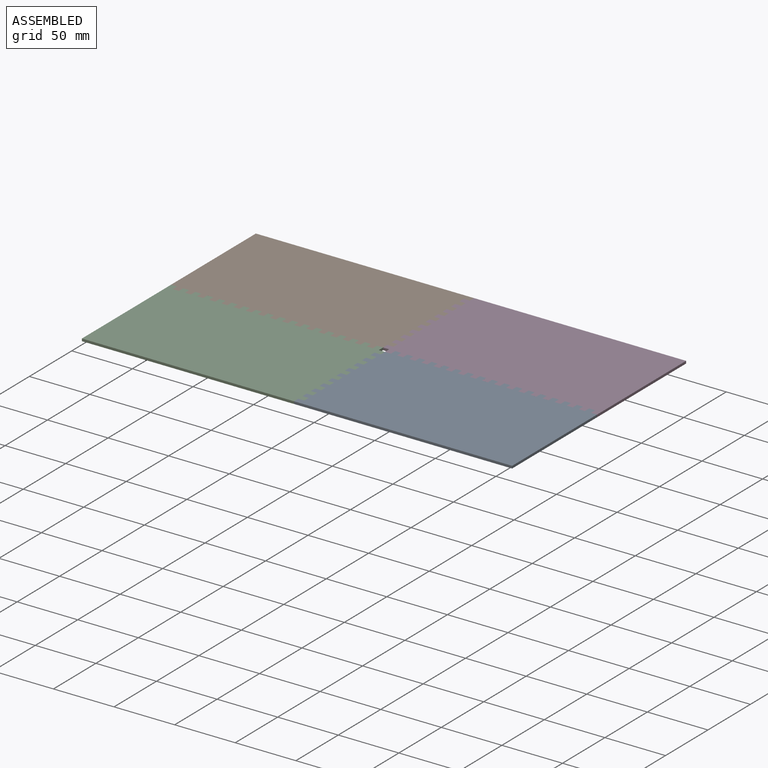
[diagram: assembled view]
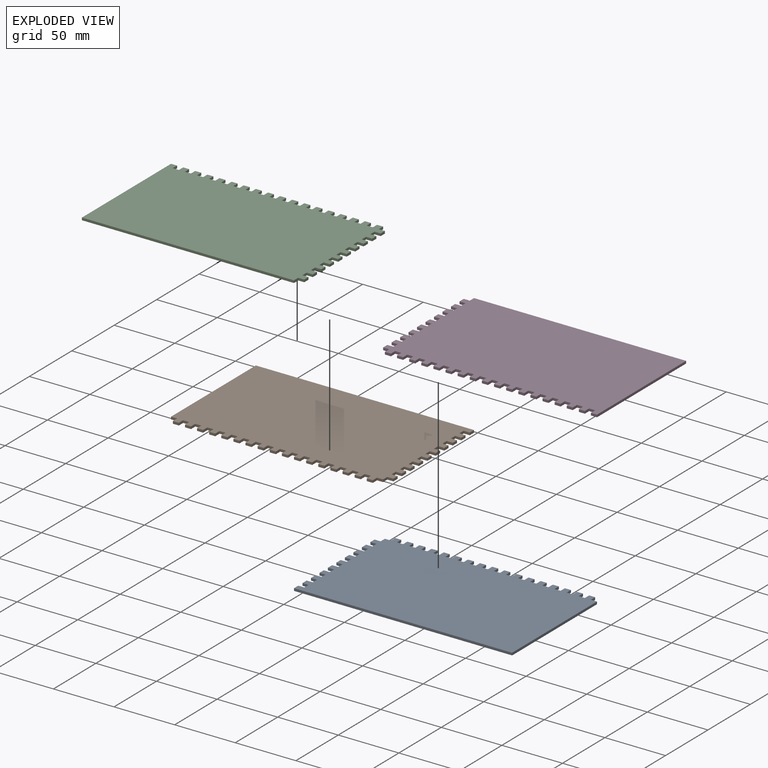
[diagram: exploded view]
GUIDED TOUR — MATED ASSEMBLY (Onshape document 534b0cb7e22ac7e6372c0f38, AutoMate assembly 534b0cb7e22ac7e6372c0f38_f17c7b90aa69325668de5390_e5fa5e17240f428e5be0f76f_default)

This assembly has 4 components, labeled P0..P3 below (a component is one placed occurrence of a part; the same part can appear more than once), held together by 3 mates. A mate is a constraint between two components; its type names the relative motion it leaves free:
  FASTENED — locks the two components together rigidly (no relative motion).
Axis/direction vectors are unit vectors and 'through' points are millimeter coordinates, both in the assembly's world frame.

MATES
  1. FASTENED "Fastened 1": P1 <-> P3, direction (0.000, 0.000, 1.000) through (5.84, 63.37, -3.83) mm
  2. FASTENED "Fastened 3": P0 <-> P2, direction (0.000, 0.000, 1.000) through (0.84, -136.63, -3.83) mm
  3. FASTENED "Fastened 2": P3 <-> P0, direction (0.000, 0.000, 1.000) through (178.34, -39.13, -3.83) mm

ASSEMBLY ORDER
  1. P3 — the base component [order verified]
  2. P1 [order verified]
  3. P2 [order verified]
  4. P0 [order verified]
Order-tag legend:
  [order verified] — this step's position reverses a verified removal order: the component was checked to insert without passing through the ones already placed.

Of the 4 components, 4 carry the full construction recipe — the FeatureScript program that regenerates the part's solid from scratch; the rest are supplied as boundary geometry only.
Each toured component is shown spotlighted twice — in the assembled view, then in the exploded view, where a leader line traces a displaced component back to its assembled socket (saturated green if recipe-attached, orange if geometry-only; every other component desaturated gray) — followed by its recipe or geometry summary and the mates that hold it.
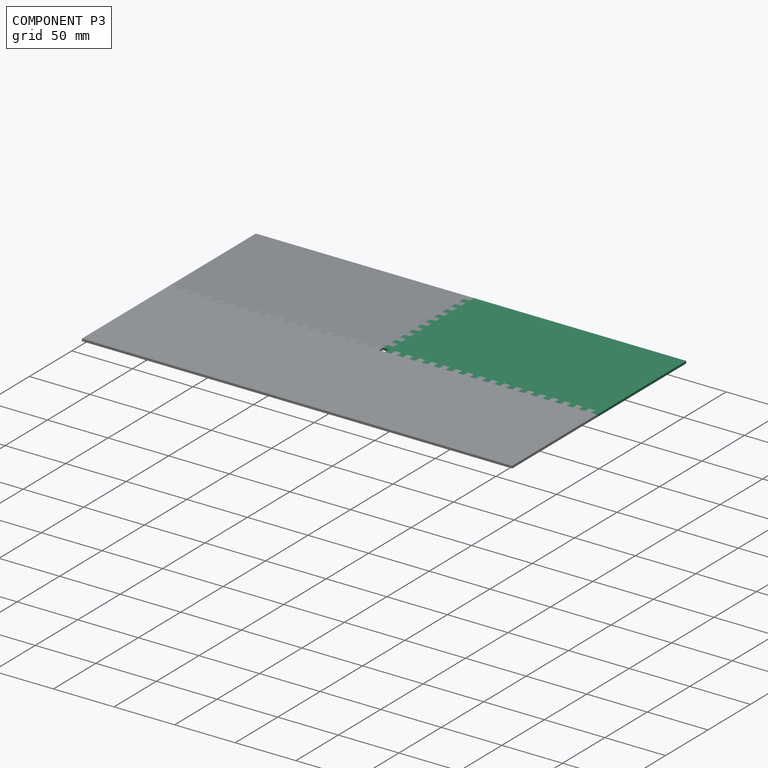
[diagram: component P3 — assembled]
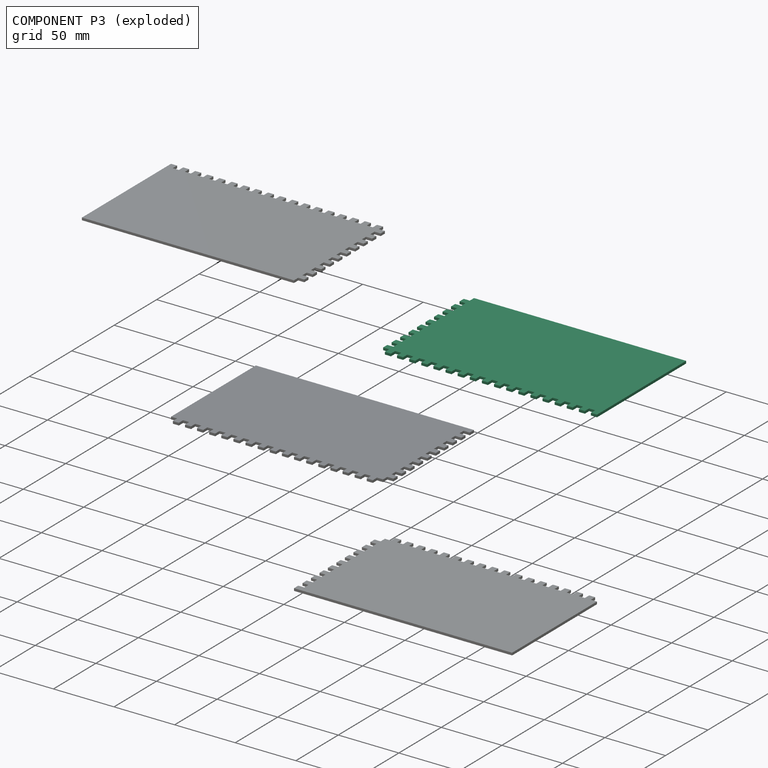
[diagram: component P3 — exploded]
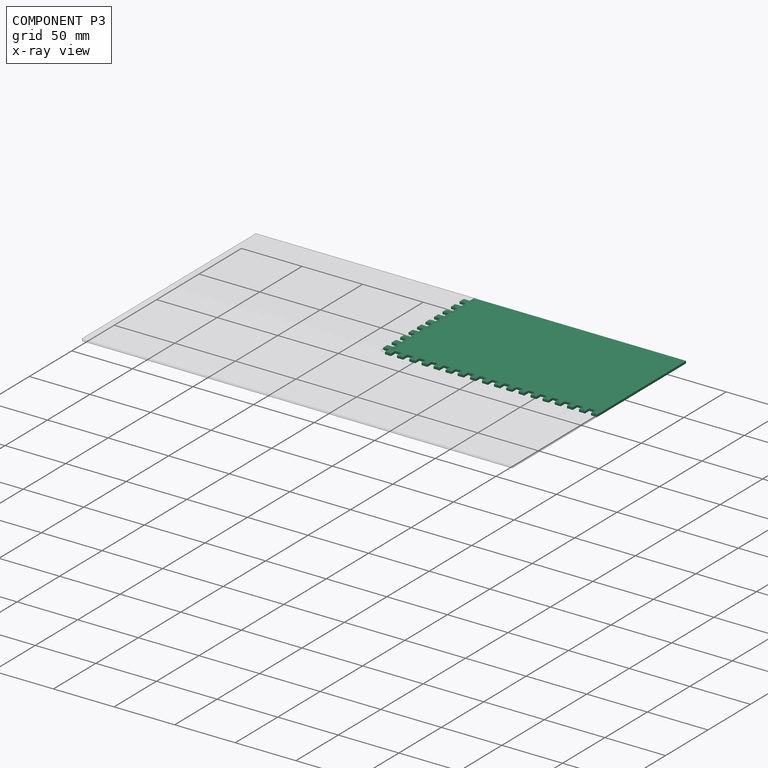
[diagram: component P3 — x-ray view]
COMPONENT P3 — same part as P2 (CADFS 00675525); its construction recipe is shown at P2.
Held by: FASTENED mate "Fastened 1" to P1; FASTENED mate "Fastened 2" to P0.
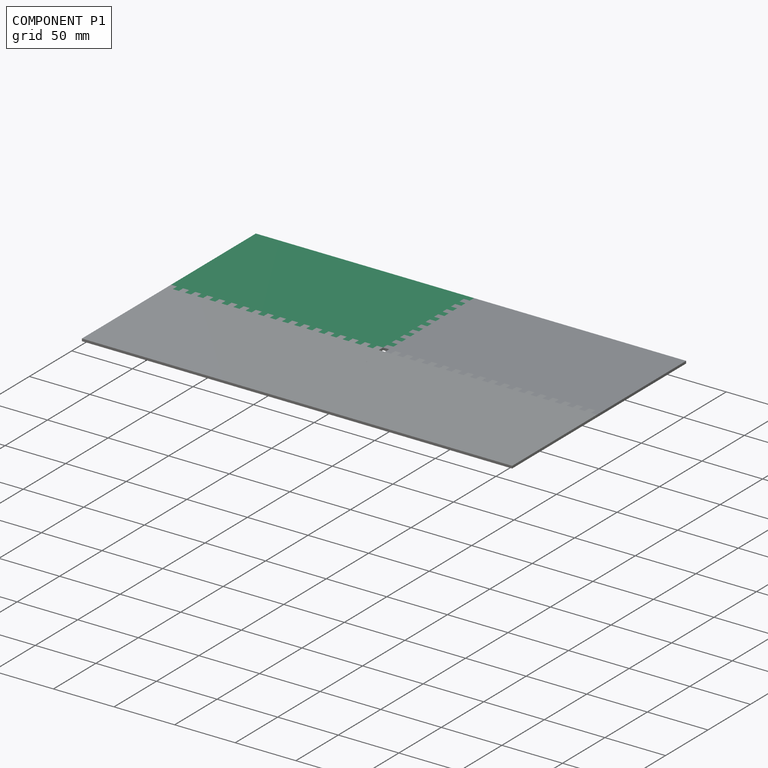
[diagram: component P1 — assembled]
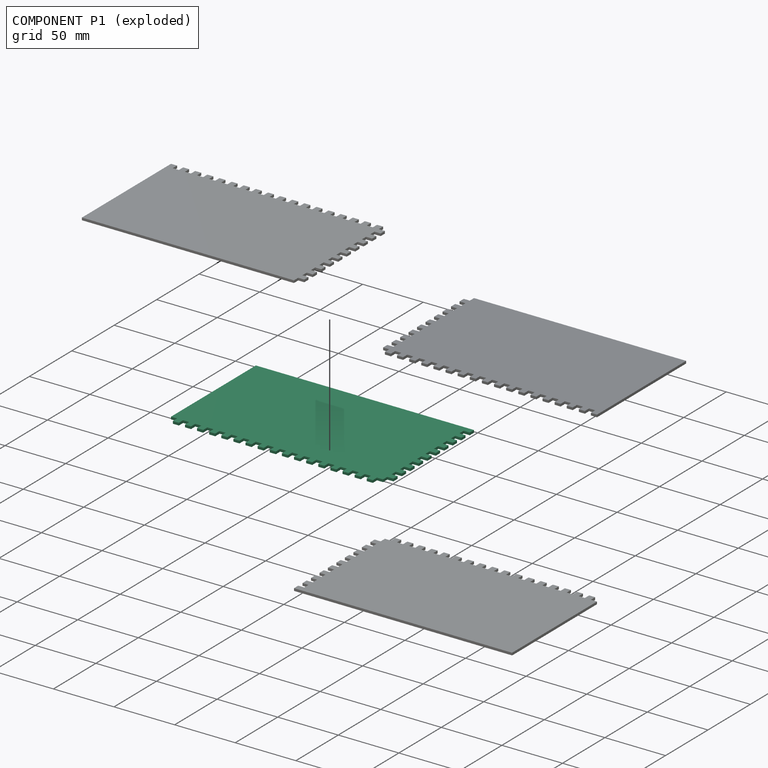
[diagram: component P1 — exploded]
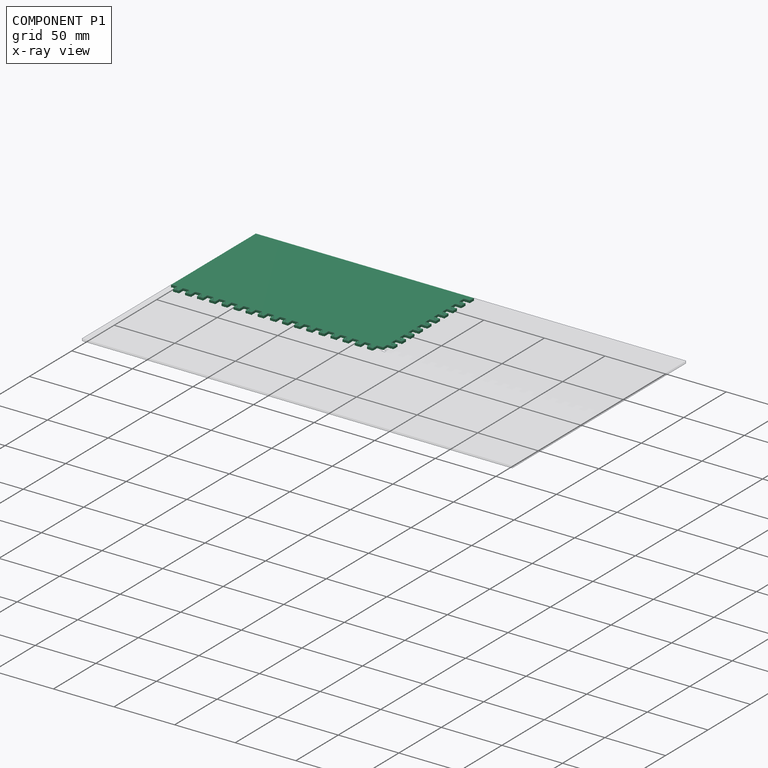
[diagram: component P1 — x-ray view]
COMPONENT P1 — same part as P0 (CADFS 00675526); its construction recipe is shown at P0.
Held by: FASTENED mate "Fastened 1" to P3.
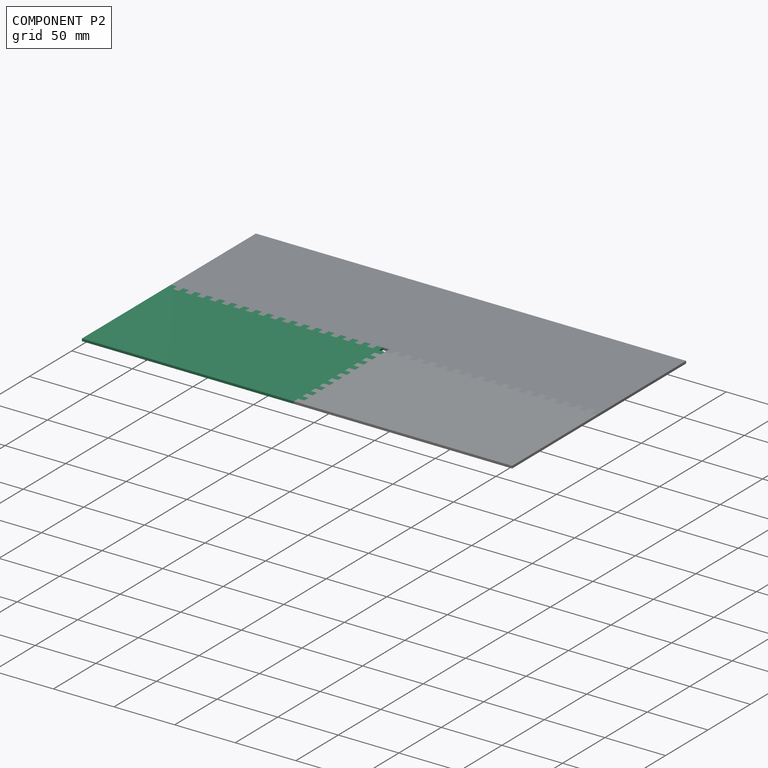
[diagram: component P2 — assembled]
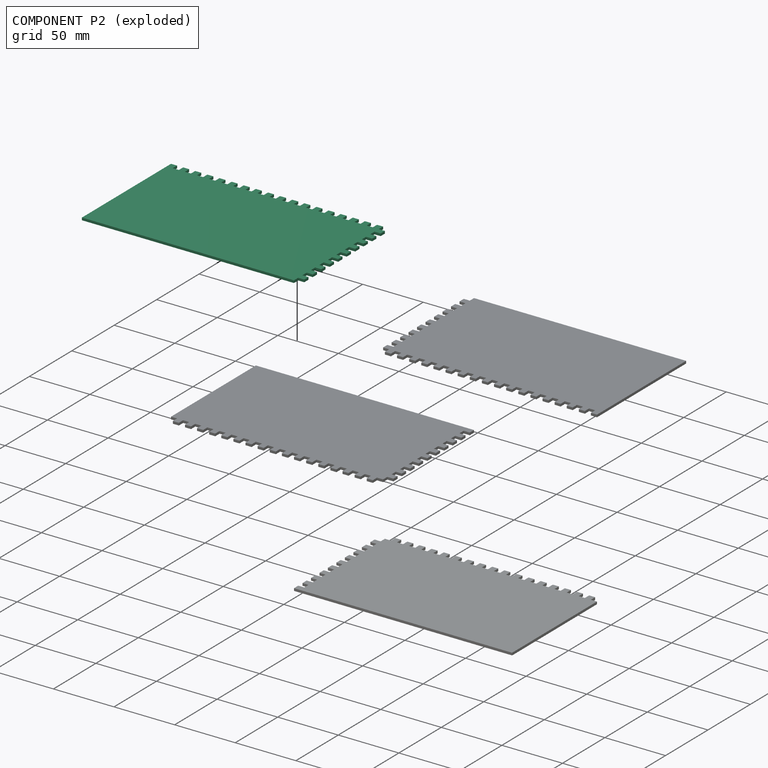
[diagram: component P2 — exploded]
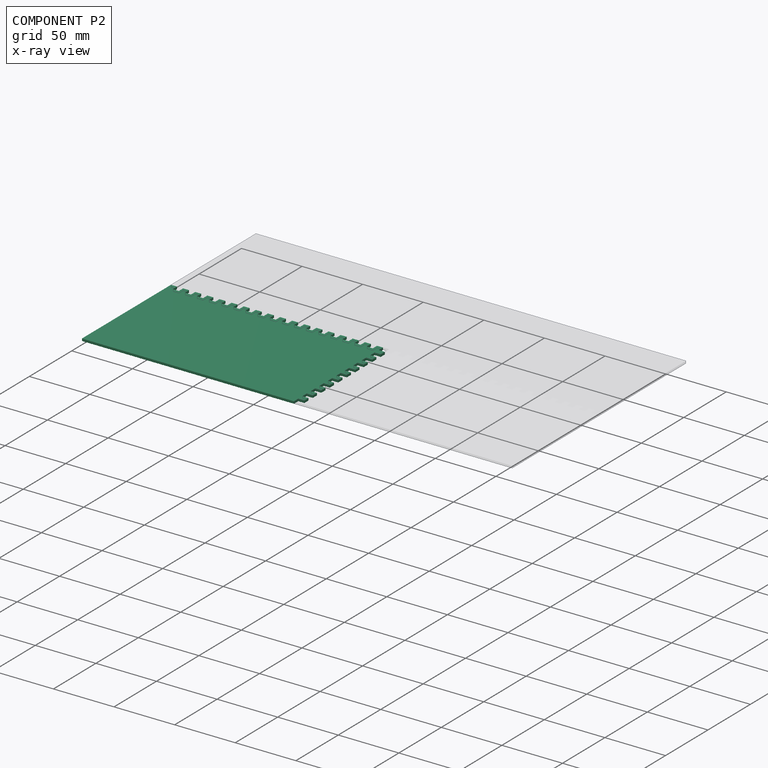
[diagram: component P2 — x-ray view]
COMPONENT P2 — recipe-attached (CADFS 00675525, mesh-verified: the recipe's output STEP matches this component's geometry to below the mesh-comparison resolution (tessellation chordal tolerance ~0.313 mm)).
Held by: FASTENED mate "Fastened 3" to P0.
Construction recipe (FeatureScript — the CAD program that rebuilds this solid; sketch coordinates are in the units given by the * unit suffixes, e.g. mm):

FeatureScript 1511;
import(path : "onshape/std/geometry.fs", version : "1511.0");
import(path : "onshape/std/common.fs", version : "1511.0");
const mm = millimeter;
const VERTEX = EntityType.VERTEX;
const EDGE = EntityType.EDGE;
const FACE = EntityType.FACE;
const BODY = EntityType.BODY;
function v(x, y){return vector(x, y);}
function OD(order){return orderDisambiguation(order);}
function OSD(set){return originalSetDisambiguation(set);}
function TD(topology){return topologyDisambiguation(topology);}
function TDD(query){return trueDependencyDisambiguation(query);}
function sQuery(a, b, c) {return sketchEntityQuery(a, b, c);}

annotation { "Feature Type Name" : "Feature", "Feature Type Description" : "" }
export const myFeature = defineFeature(function(context is Context, id is Id, definition is map)
    precondition{}
    {
        {
            var Q0;
            Q0=qCreatedBy(makeId("Top.planeOp"),FACE);
            var sketch = newSketch(context, id + "F0", { "sketchPlane" : qUnion([Q0])});
            skLineSegment(sketch, "E0", {"start": v(-180, -103.5) * mm, "end": v(-5, -103.5) * mm});
            skLineSegment(sketch, "E1", {"start": v(0, -3.5) * mm, "end": v(0, -8.5) * mm});
            skLineSegment(sketch, "E2", {"start": v(-180, 1.5) * mm, "end": v(-180, -3.5) * mm});
            skLineSegment(sketch, "E3", {"start": v(-180, 1.5) * mm, "end": v(-175, 1.5) * mm});
            skLineSegment(sketch, "E4", {"start": v(-170, 1.5) * mm, "end": v(-165, 1.5) * mm});
            skLineSegment(sketch, "E5", {"start": v(-160, 1.5) * mm, "end": v(-155, 1.5) * mm});
            skLineSegment(sketch, "E6", {"start": v(-150, 1.5) * mm, "end": v(-145, 1.5) * mm});
            skLineSegment(sketch, "E7", {"start": v(-140, 1.5) * mm, "end": v(-135, 1.5) * mm});
            skLineSegment(sketch, "E8", {"start": v(-130, 1.5) * mm, "end": v(-125, 1.5) * mm});
            skLineSegment(sketch, "E9", {"start": v(-120, 1.5) * mm, "end": v(-115, 1.5) * mm});
            skLineSegment(sketch, "E10", {"start": v(-110, 1.5) * mm, "end": v(-105, 1.5) * mm});
            skLineSegment(sketch, "E11", {"start": v(-100, 1.5) * mm, "end": v(-95, 1.5) * mm});
            skLineSegment(sketch, "E12", {"start": v(-90, 1.5) * mm, "end": v(-85, 1.5) * mm});
            skLineSegment(sketch, "E13", {"start": v(-80, 1.5) * mm, "end": v(-75, 1.5) * mm});
            skLineSegment(sketch, "E14", {"start": v(-70, 1.5) * mm, "end": v(-65, 1.5) * mm});
            skLineSegment(sketch, "E15", {"start": v(-60, 1.5) * mm, "end": v(-55, 1.5) * mm});
            skLineSegment(sketch, "E16", {"start": v(-50, 1.5) * mm, "end": v(-45, 1.5) * mm});
            skLineSegment(sketch, "E17", {"start": v(-40, 1.5) * mm, "end": v(-35, 1.5) * mm});
            skLineSegment(sketch, "E18", {"start": v(-30, 1.5) * mm, "end": v(-25, 1.5) * mm});
            skLineSegment(sketch, "E19", {"start": v(-20, 1.5) * mm, "end": v(-15, 1.5) * mm});
            skLineSegment(sketch, "E20", {"start": v(-10, 1.5) * mm, "end": v(-5, 1.5) * mm});
            skLineSegment(sketch, "E21", {"start": v(-180, -3.5) * mm, "end": v(-180, -103.5) * mm});
            skLineSegment(sketch, "E22", {"start": v(-175, -3.5) * mm, "end": v(-170, -3.5) * mm});
            skLineSegment(sketch, "E23", {"start": v(-175, 1.5) * mm, "end": v(-175, -3.5) * mm});
            skLineSegment(sketch, "E24", {"start": v(-170, 1.5) * mm, "end": v(-170, -3.5) * mm});
            skLineSegment(sketch, "E25", {"start": v(-165, 1.5) * mm, "end": v(-165, -3.5) * mm});
            skLineSegment(sketch, "E26", {"start": v(-160, 1.5) * mm, "end": v(-160, -3.5) * mm});
            skLineSegment(sketch, "E27", {"start": v(-155, 1.5) * mm, "end": v(-155, -3.5) * mm});
            skLineSegment(sketch, "E28", {"start": v(-150, 1.5) * mm, "end": v(-150, -3.5) * mm});
            skLineSegment(sketch, "E29", {"start": v(-145, 1.5) * mm, "end": v(-145, -3.5) * mm});
            skLineSegment(sketch, "E30", {"start": v(-140, 1.5) * mm, "end": v(-140, -3.5) * mm});
            skLineSegment(sketch, "E31", {"start": v(-135, 1.5) * mm, "end": v(-135, -3.5) * mm});
            skLineSegment(sketch, "E32", {"start": v(-130, 1.5) * mm, "end": v(-130, -3.5) * mm});
            skLineSegment(sketch, "E33", {"start": v(-125, 1.5) * mm, "end": v(-125, -3.5) * mm});
            skLineSegment(sketch, "E34", {"start": v(-85, 1.5) * mm, "end": v(-85, -3.5) * mm});
            skLineSegment(sketch, "E35", {"start": v(-80, 1.5) * mm, "end": v(-80, -3.5) * mm});
            skLineSegment(sketch, "E36", {"start": v(-75, 1.5) * mm, "end": v(-75, -3.5) * mm});
            skLineSegment(sketch, "E37", {"start": v(-70, 1.5) * mm, "end": v(-70, -3.5) * mm});
            skLineSegment(sketch, "E38", {"start": v(-65, 1.5) * mm, "end": v(-65, -3.5) * mm});
            skLineSegment(sketch, "E39", {"start": v(-60, 1.5) * mm, "end": v(-60, -3.5) * mm});
            skLineSegment(sketch, "E40", {"start": v(-55, 1.5) * mm, "end": v(-55, -3.5) * mm});
            skLineSegment(sketch, "E41", {"start": v(-50, 1.5) * mm, "end": v(-50, -3.5) * mm});
            skLineSegment(sketch, "E42", {"start": v(-45, 1.5) * mm, "end": v(-45, -3.5) * mm});
            skLineSegment(sketch, "E43", {"start": v(-40, 1.5) * mm, "end": v(-40, -3.5) * mm});
            skLineSegment(sketch, "E44", {"start": v(-35, 1.5) * mm, "end": v(-35, -3.5) * mm});
            skLineSegment(sketch, "E45", {"start": v(-30, 1.5) * mm, "end": v(-30, -3.5) * mm});
            skLineSegment(sketch, "E46", {"start": v(-25, 1.5) * mm, "end": v(-25, -3.5) * mm});
            skLineSegment(sketch, "E47", {"start": v(-20, 1.5) * mm, "end": v(-20, -3.5) * mm});
            skLineSegment(sketch, "E48", {"start": v(-15, 1.5) * mm, "end": v(-15, -3.5) * mm});
            skLineSegment(sketch, "E49", {"start": v(-10, 1.5) * mm, "end": v(-10, -3.5) * mm});
            skLineSegment(sketch, "E50", {"start": v(-5, 1.5) * mm, "end": v(-5, -3.5) * mm});
            skLineSegment(sketch, "E51.MirrorCS", {"start": v(-180, 1.5) * mm, "end": v(-175, 1.5) * mm, "construction": true});
            skLineSegment(sketch, "E52.trimOffspring", {"start": v(-165, -3.5) * mm, "end": v(-160, -3.5) * mm});
            skLineSegment(sketch, "E53.trimOffspring", {"start": v(-155, -3.5) * mm, "end": v(-150, -3.5) * mm});
            skLineSegment(sketch, "E54.trimOffspring", {"start": v(-145, -3.5) * mm, "end": v(-140, -3.5) * mm});
            skLineSegment(sketch, "E55.trimOffspring", {"start": v(-135, -3.5) * mm, "end": v(-130, -3.5) * mm});
            skLineSegment(sketch, "E56.trimOffspring", {"start": v(-125, -3.5) * mm, "end": v(-120, -3.5) * mm});
            skLineSegment(sketch, "E57.trimOffspring", {"start": v(-115, -3.5) * mm, "end": v(-110, -3.5) * mm});
            skLineSegment(sketch, "E58.trimOffspring", {"start": v(-105, -3.5) * mm, "end": v(-100, -3.5) * mm});
            skLineSegment(sketch, "E59.trimOffspring", {"start": v(-95, -3.5) * mm, "end": v(-90, -3.5) * mm});
            skLineSegment(sketch, "E60.trimOffspring", {"start": v(-85, -3.5) * mm, "end": v(-80, -3.5) * mm});
            skLineSegment(sketch, "E61.trimOffspring", {"start": v(-75, -3.5) * mm, "end": v(-70, -3.5) * mm});
            skLineSegment(sketch, "E62.trimOffspring", {"start": v(-65, -3.5) * mm, "end": v(-60, -3.5) * mm});
            skLineSegment(sketch, "E63.trimOffspring", {"start": v(-55, -3.5) * mm, "end": v(-50, -3.5) * mm});
            skLineSegment(sketch, "E64.trimOffspring", {"start": v(-45, -3.5) * mm, "end": v(-40, -3.5) * mm});
            skLineSegment(sketch, "E65.trimOffspring", {"start": v(-25, -3.5) * mm, "end": v(-20, -3.5) * mm});
            skLineSegment(sketch, "E66.trimOffspring", {"start": v(-5, -3.5) * mm, "end": v(0, -3.5) * mm});
            skLineSegment(sketch, "E67.trimOffspring", {"start": v(-15, -3.5) * mm, "end": v(-10, -3.5) * mm});
            skLineSegment(sketch, "E68", {"start": v(-30, -3.5) * mm, "end": v(-35, -3.5) * mm});
            skLineSegment(sketch, "E69", {"start": v(-5, -3.5) * mm, "end": v(-5, -103.5) * mm});
            skLineSegment(sketch, "E70", {"start": v(-5, -8.5) * mm, "end": v(0, -8.5) * mm});
            skLineSegment(sketch, "E71", {"start": v(-5, -13.5) * mm, "end": v(0, -13.5) * mm});
            skLineSegment(sketch, "E72", {"start": v(-5, -18.5) * mm, "end": v(0, -18.5) * mm});
            skLineSegment(sketch, "E73", {"start": v(0, -23.5) * mm, "end": v(-5, -23.5) * mm});
            skLineSegment(sketch, "E74", {"start": v(-5, -28.5) * mm, "end": v(0, -28.5) * mm});
            skLineSegment(sketch, "E75", {"start": v(-5, -33.5) * mm, "end": v(0, -33.5) * mm});
            skLineSegment(sketch, "E76", {"start": v(0, -38.5) * mm, "end": v(-5, -38.5) * mm});
            skLineSegment(sketch, "E77", {"start": v(-5, -43.5) * mm, "end": v(0, -43.5) * mm});
            skLineSegment(sketch, "E78", {"start": v(0, -48.5) * mm, "end": v(-5, -48.5) * mm});
            skLineSegment(sketch, "E79", {"start": v(-5, -53.5) * mm, "end": v(0, -53.5) * mm});
            skLineSegment(sketch, "E80", {"start": v(0, -58.5) * mm, "end": v(-5, -58.5) * mm});
            skLineSegment(sketch, "E81", {"start": v(-5, -63.5) * mm, "end": v(0, -63.5) * mm});
            skLineSegment(sketch, "E82", {"start": v(-5, -68.5) * mm, "end": v(0, -68.5) * mm});
            skLineSegment(sketch, "E83", {"start": v(-5, -73.5) * mm, "end": v(0, -73.5) * mm});
            skLineSegment(sketch, "E84", {"start": v(-5, -78.5) * mm, "end": v(0, -78.5) * mm});
            skLineSegment(sketch, "E85", {"start": v(-5, -83.5) * mm, "end": v(0, -83.5) * mm});
            skLineSegment(sketch, "E86", {"start": v(-5, -88.5) * mm, "end": v(0, -88.5) * mm});
            skLineSegment(sketch, "E87", {"start": v(-5, -93.5) * mm, "end": v(0, -93.5) * mm});
            skLineSegment(sketch, "E88", {"start": v(-5, -98.5) * mm, "end": v(0, -98.5) * mm});
            skLineSegment(sketch, "E89.trimOffspring", {"start": v(0, -13.5) * mm, "end": v(0, -18.5) * mm});
            skLineSegment(sketch, "E90.trimOffspring", {"start": v(0, -23.5) * mm, "end": v(0, -28.5) * mm});
            skLineSegment(sketch, "E91.trimOffspring", {"start": v(0, -33.5) * mm, "end": v(0, -38.5) * mm});
            skLineSegment(sketch, "E92.trimOffspring", {"start": v(0, -43.5) * mm, "end": v(0, -48.5) * mm});
            skLineSegment(sketch, "E93.trimOffspring", {"start": v(0, -53.5) * mm, "end": v(0, -58.5) * mm});
            skLineSegment(sketch, "E94.trimOffspring", {"start": v(0, -63.5) * mm, "end": v(0, -68.5) * mm});
            skLineSegment(sketch, "E95.trimOffspring", {"start": v(0, -83.5) * mm, "end": v(0, -88.5) * mm});
            skLineSegment(sketch, "E96", {"start": v(-120, -3.5) * mm, "end": v(-120, 1.5) * mm});
            skLineSegment(sketch, "E97", {"start": v(-115, 1.5) * mm, "end": v(-115, -3.5) * mm});
            skLineSegment(sketch, "E98", {"start": v(-110, -3.5) * mm, "end": v(-110, 1.5) * mm});
            skLineSegment(sketch, "E99", {"start": v(-105, 1.5) * mm, "end": v(-105, -3.5) * mm});
            skLineSegment(sketch, "E100", {"start": v(-100, 1.5) * mm, "end": v(-100, -3.5) * mm});
            skLineSegment(sketch, "E101", {"start": v(-95, 1.5) * mm, "end": v(-95, -3.5) * mm});
            skLineSegment(sketch, "E102", {"start": v(-90, 1.5) * mm, "end": v(-90, -3.5) * mm});
            skLineSegment(sketch, "E103", {"start": v(0, -78.5) * mm, "end": v(0, -73.5) * mm});
            skLineSegment(sketch, "E104.trimOffspring", {"start": v(0, -93.5) * mm, "end": v(0, -98.5) * mm});
            skSolve(sketch);
        }
        {
            var Q0;
            Q0 = qSketchRegion(id + "F0", true);
            extrude(context, id + "F1", {"entities" : qUnion([Q0]), "depth" : 2 * mm, "offsetDistance" : 25 * mm});
        }
    });
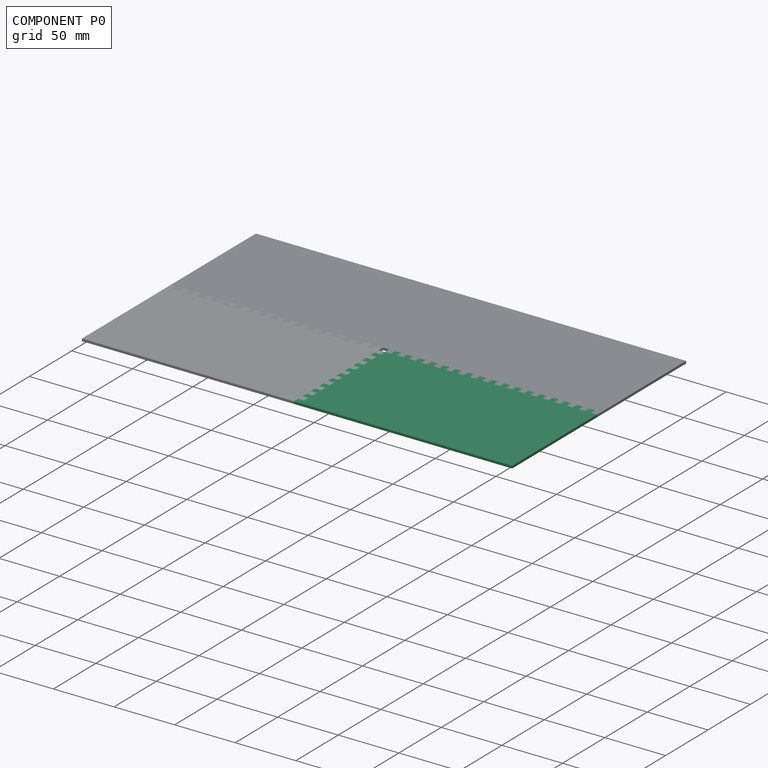
[diagram: component P0 — assembled]
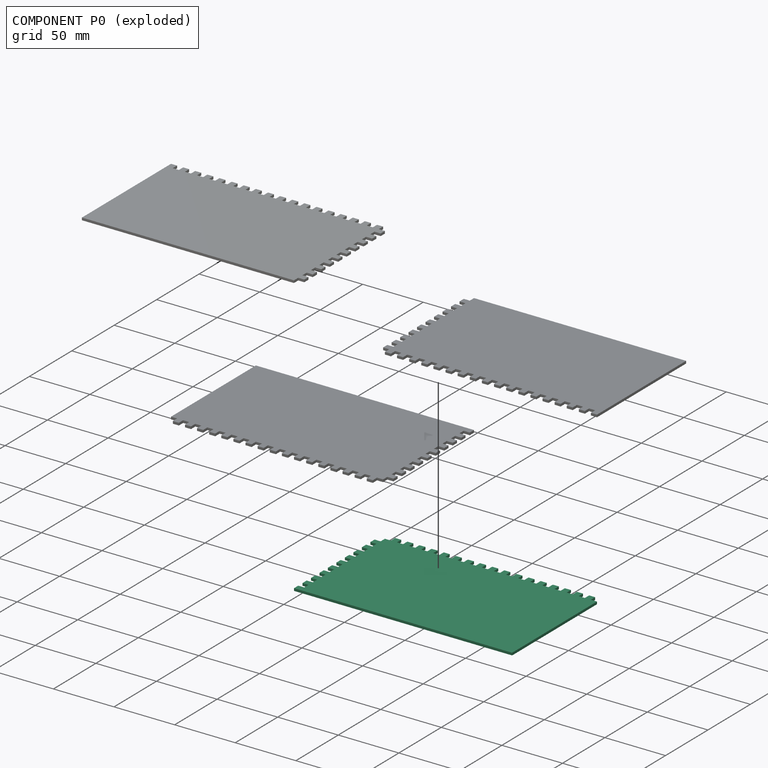
[diagram: component P0 — exploded]
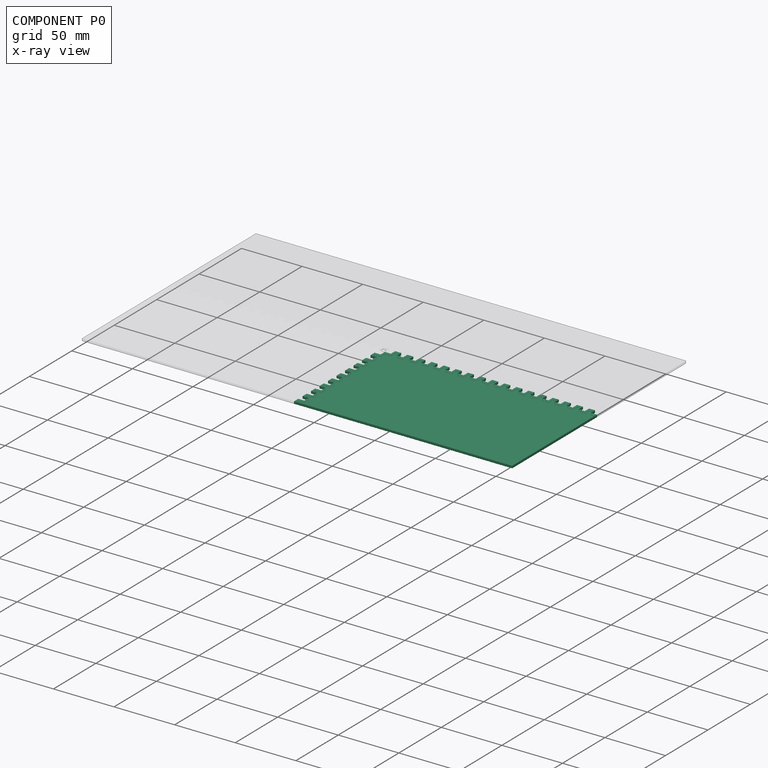
[diagram: component P0 — x-ray view]
COMPONENT P0 — recipe-attached (CADFS 00675526, mesh-verified: the recipe's output STEP matches this component's geometry to below the mesh-comparison resolution (tessellation chordal tolerance ~0.313 mm)).
Held by: FASTENED mate "Fastened 3" to P2; FASTENED mate "Fastened 2" to P3.
Construction recipe (FeatureScript — the CAD program that rebuilds this solid; sketch coordinates are in the units given by the * unit suffixes, e.g. mm):

FeatureScript 1511;
import(path : "onshape/std/geometry.fs", version : "1511.0");
import(path : "onshape/std/common.fs", version : "1511.0");
const mm = millimeter;
const VERTEX = EntityType.VERTEX;
const EDGE = EntityType.EDGE;
const FACE = EntityType.FACE;
const BODY = EntityType.BODY;
function v(x, y){return vector(x, y);}
function OD(order){return orderDisambiguation(order);}
function OSD(set){return originalSetDisambiguation(set);}
function TD(topology){return topologyDisambiguation(topology);}
function TDD(query){return trueDependencyDisambiguation(query);}
function sQuery(a, b, c) {return sketchEntityQuery(a, b, c);}

annotation { "Feature Type Name" : "Feature", "Feature Type Description" : "" }
export const myFeature = defineFeature(function(context is Context, id is Id, definition is map)
    precondition{}
    {
        {
            var Q0;
            Q0=qCreatedBy(makeId("Top.planeOp"),FACE);
            var sketch = newSketch(context, id + "F0", { "sketchPlane" : qUnion([Q0])});
            skLineSegment(sketch, "E0", {"start": v(-180, -103.5) * mm, "end": v(-5, -103.5) * mm});
            skLineSegment(sketch, "E1", {"start": v(-180, -3.5) * mm, "end": v(-180, -103.5) * mm});
            skLineSegment(sketch, "E2", {"start": v(-175, 1.5) * mm, "end": v(-175, -3.5) * mm});
            skLineSegment(sketch, "E3", {"start": v(-170, 1.5) * mm, "end": v(-170, -3.5) * mm});
            skLineSegment(sketch, "E4", {"start": v(-165, 1.5) * mm, "end": v(-165, -3.5) * mm});
            skLineSegment(sketch, "E5", {"start": v(-160, 1.5) * mm, "end": v(-160, -3.5) * mm});
            skLineSegment(sketch, "E6", {"start": v(-155, 1.5) * mm, "end": v(-155, -3.5) * mm});
            skLineSegment(sketch, "E7", {"start": v(-150, 1.5) * mm, "end": v(-150, -3.5) * mm});
            skLineSegment(sketch, "E8", {"start": v(-145, 1.5) * mm, "end": v(-145, -3.5) * mm});
            skLineSegment(sketch, "E9", {"start": v(-140, 1.5) * mm, "end": v(-140, -3.5) * mm});
            skLineSegment(sketch, "E10", {"start": v(-135, 1.5) * mm, "end": v(-135, -3.5) * mm});
            skLineSegment(sketch, "E11", {"start": v(-130, 1.5) * mm, "end": v(-130, -3.5) * mm});
            skLineSegment(sketch, "E12", {"start": v(-125, 1.5) * mm, "end": v(-125, -3.5) * mm});
            skLineSegment(sketch, "E13", {"start": v(-85, 1.5) * mm, "end": v(-85, -3.5) * mm});
            skLineSegment(sketch, "E14", {"start": v(-80, 1.5) * mm, "end": v(-80, -3.5) * mm});
            skLineSegment(sketch, "E15", {"start": v(-75, 1.5) * mm, "end": v(-75, -3.5) * mm});
            skLineSegment(sketch, "E16", {"start": v(-70, 1.5) * mm, "end": v(-70, -3.5) * mm});
            skLineSegment(sketch, "E17", {"start": v(-65, 1.5) * mm, "end": v(-65, -3.5) * mm});
            skLineSegment(sketch, "E18", {"start": v(-60, 1.5) * mm, "end": v(-60, -3.5) * mm});
            skLineSegment(sketch, "E19", {"start": v(-55, 1.5) * mm, "end": v(-55, -3.5) * mm});
            skLineSegment(sketch, "E20", {"start": v(-50, 1.5) * mm, "end": v(-50, -3.5) * mm});
            skLineSegment(sketch, "E21", {"start": v(-45, 1.5) * mm, "end": v(-45, -3.5) * mm});
            skLineSegment(sketch, "E22", {"start": v(-40, 1.5) * mm, "end": v(-40, -3.5) * mm});
            skLineSegment(sketch, "E23", {"start": v(-35, 1.5) * mm, "end": v(-35, -3.5) * mm});
            skLineSegment(sketch, "E24", {"start": v(-30, 1.5) * mm, "end": v(-30, -3.5) * mm});
            skLineSegment(sketch, "E25", {"start": v(-25, 1.5) * mm, "end": v(-25, -3.5) * mm});
            skLineSegment(sketch, "E26", {"start": v(-20, 1.5) * mm, "end": v(-20, -3.5) * mm});
            skLineSegment(sketch, "E27", {"start": v(-15, 1.5) * mm, "end": v(-15, -3.5) * mm});
            skLineSegment(sketch, "E28", {"start": v(-10, 1.5) * mm, "end": v(-10, -3.5) * mm});
            skLineSegment(sketch, "E29", {"start": v(-5, -3.5) * mm, "end": v(-5, -8.5) * mm});
            skLineSegment(sketch, "E30", {"start": v(-5, -8.5) * mm, "end": v(0, -8.5) * mm});
            skLineSegment(sketch, "E31", {"start": v(-5, -13.5) * mm, "end": v(0, -13.5) * mm});
            skLineSegment(sketch, "E32", {"start": v(-5, -18.5) * mm, "end": v(0, -18.5) * mm});
            skLineSegment(sketch, "E33", {"start": v(0, -23.5) * mm, "end": v(-5, -23.5) * mm});
            skLineSegment(sketch, "E34", {"start": v(-5, -28.5) * mm, "end": v(0, -28.5) * mm});
            skLineSegment(sketch, "E35", {"start": v(-5, -33.5) * mm, "end": v(0, -33.5) * mm});
            skLineSegment(sketch, "E36", {"start": v(0, -38.5) * mm, "end": v(-5, -38.5) * mm});
            skLineSegment(sketch, "E37", {"start": v(-5, -43.5) * mm, "end": v(0, -43.5) * mm});
            skLineSegment(sketch, "E38", {"start": v(0, -48.5) * mm, "end": v(-5, -48.5) * mm});
            skLineSegment(sketch, "E39", {"start": v(-5, -53.5) * mm, "end": v(0, -53.5) * mm});
            skLineSegment(sketch, "E40", {"start": v(0, -58.5) * mm, "end": v(-5, -58.5) * mm});
            skLineSegment(sketch, "E41", {"start": v(-5, -63.5) * mm, "end": v(0, -63.5) * mm});
            skLineSegment(sketch, "E42", {"start": v(-5, -68.5) * mm, "end": v(0, -68.5) * mm});
            skLineSegment(sketch, "E43", {"start": v(-5, -73.5) * mm, "end": v(0, -73.5) * mm});
            skLineSegment(sketch, "E44", {"start": v(-5, -78.5) * mm, "end": v(0, -78.5) * mm});
            skLineSegment(sketch, "E45", {"start": v(-5, -83.5) * mm, "end": v(0, -83.5) * mm});
            skLineSegment(sketch, "E46", {"start": v(-5, -88.5) * mm, "end": v(0, -88.5) * mm});
            skLineSegment(sketch, "E47", {"start": v(-5, -93.5) * mm, "end": v(0, -93.5) * mm});
            skLineSegment(sketch, "E48", {"start": v(-5, -98.5) * mm, "end": v(0, -98.5) * mm});
            skLineSegment(sketch, "E49", {"start": v(-120, -3.5) * mm, "end": v(-120, 1.5) * mm});
            skLineSegment(sketch, "E50", {"start": v(-115, 1.5) * mm, "end": v(-115, -3.5) * mm});
            skLineSegment(sketch, "E51", {"start": v(-110, -3.5) * mm, "end": v(-110, 1.5) * mm});
            skLineSegment(sketch, "E52", {"start": v(-105, 1.5) * mm, "end": v(-105, -3.5) * mm});
            skLineSegment(sketch, "E53", {"start": v(-100, 1.5) * mm, "end": v(-100, -3.5) * mm});
            skLineSegment(sketch, "E54", {"start": v(-95, 1.5) * mm, "end": v(-95, -3.5) * mm});
            skLineSegment(sketch, "E55", {"start": v(-90, 1.5) * mm, "end": v(-90, -3.5) * mm});
            skLineSegment(sketch, "E56", {"start": v(-175, 1.5) * mm, "end": v(-170, 1.5) * mm});
            skLineSegment(sketch, "E57", {"start": v(-175, -3.5) * mm, "end": v(-180, -3.5) * mm});
            skLineSegment(sketch, "E58", {"start": v(-170, -3.5) * mm, "end": v(-165, -3.5) * mm});
            skLineSegment(sketch, "E59", {"start": v(-160, 1.5) * mm, "end": v(-165, 1.5) * mm});
            skLineSegment(sketch, "E60", {"start": v(-155, 1.5) * mm, "end": v(-150, 1.5) * mm});
            skLineSegment(sketch, "E61", {"start": v(-145, 1.5) * mm, "end": v(-140, 1.5) * mm});
            skLineSegment(sketch, "E62", {"start": v(-135, 1.5) * mm, "end": v(-130, 1.5) * mm});
            skLineSegment(sketch, "E63", {"start": v(-125, 1.5) * mm, "end": v(-120, 1.5) * mm});
            skLineSegment(sketch, "E64", {"start": v(-125, -3.5) * mm, "end": v(-130, -3.5) * mm});
            skLineSegment(sketch, "E65", {"start": v(-135, -3.5) * mm, "end": v(-140, -3.5) * mm});
            skLineSegment(sketch, "E66", {"start": v(-145, -3.5) * mm, "end": v(-150, -3.5) * mm});
            skLineSegment(sketch, "E67", {"start": v(-155, -3.5) * mm, "end": v(-160, -3.5) * mm});
            skLineSegment(sketch, "E68", {"start": v(-120, -3.5) * mm, "end": v(-115, -3.5) * mm});
            skLineSegment(sketch, "E69", {"start": v(-115, 1.5) * mm, "end": v(-110, 1.5) * mm});
            skLineSegment(sketch, "E70", {"start": v(-110, -3.5) * mm, "end": v(-105, -3.5) * mm});
            skLineSegment(sketch, "E71", {"start": v(-105, 1.5) * mm, "end": v(-100, 1.5) * mm});
            skLineSegment(sketch, "E72", {"start": v(-100, -3.5) * mm, "end": v(-95, -3.5) * mm});
            skLineSegment(sketch, "E73", {"start": v(-95, 1.5) * mm, "end": v(-90, 1.5) * mm});
            skLineSegment(sketch, "E74", {"start": v(-90, -3.5) * mm, "end": v(-85, -3.5) * mm});
            skLineSegment(sketch, "E75", {"start": v(-85, 1.5) * mm, "end": v(-80, 1.5) * mm});
            skLineSegment(sketch, "E76", {"start": v(-80, -3.5) * mm, "end": v(-75, -3.5) * mm});
            skLineSegment(sketch, "E77", {"start": v(-75, 1.5) * mm, "end": v(-70, 1.5) * mm});
            skLineSegment(sketch, "E78", {"start": v(-70, -3.5) * mm, "end": v(-65, -3.5) * mm});
            skLineSegment(sketch, "E79", {"start": v(-65, 1.5) * mm, "end": v(-60, 1.5) * mm});
            skLineSegment(sketch, "E80", {"start": v(-60, -3.5) * mm, "end": v(-55, -3.5) * mm});
            skLineSegment(sketch, "E81", {"start": v(-55, 1.5) * mm, "end": v(-50, 1.5) * mm});
            skLineSegment(sketch, "E82", {"start": v(-50, -3.5) * mm, "end": v(-45, -3.5) * mm});
            skLineSegment(sketch, "E83", {"start": v(-45, 1.5) * mm, "end": v(-40, 1.5) * mm});
            skLineSegment(sketch, "E84", {"start": v(-40, -3.5) * mm, "end": v(-35, -3.5) * mm});
            skLineSegment(sketch, "E85", {"start": v(-35, 1.5) * mm, "end": v(-30, 1.5) * mm});
            skLineSegment(sketch, "E86", {"start": v(-30, -3.5) * mm, "end": v(-25, -3.5) * mm});
            skLineSegment(sketch, "E87", {"start": v(-25, 1.5) * mm, "end": v(-20, 1.5) * mm});
            skLineSegment(sketch, "E88", {"start": v(-20, -3.5) * mm, "end": v(-15, -3.5) * mm});
            skLineSegment(sketch, "E89", {"start": v(-15, 1.5) * mm, "end": v(-10, 1.5) * mm});
            skLineSegment(sketch, "E90", {"start": v(-10, -3.5) * mm, "end": v(-5, -3.5) * mm});
            skLineSegment(sketch, "E91.trimOffspring", {"start": v(-5, -13.5) * mm, "end": v(-5, -18.5) * mm});
            skLineSegment(sketch, "E92", {"start": v(0, -8.5) * mm, "end": v(0, -13.5) * mm});
            skLineSegment(sketch, "E93.trimOffspring", {"start": v(-5, -23.5) * mm, "end": v(-5, -28.5) * mm});
            skLineSegment(sketch, "E94.trimOffspring", {"start": v(-5, -33.5) * mm, "end": v(-5, -38.5) * mm});
            skLineSegment(sketch, "E95.trimOffspring", {"start": v(-5, -43.5) * mm, "end": v(-5, -48.5) * mm});
            skLineSegment(sketch, "E96.trimOffspring", {"start": v(-5, -53.5) * mm, "end": v(-5, -58.5) * mm});
            skLineSegment(sketch, "E97.trimOffspring", {"start": v(-5, -63.5) * mm, "end": v(-5, -68.5) * mm});
            skLineSegment(sketch, "E98", {"start": v(0, -18.5) * mm, "end": v(0, -23.5) * mm});
            skLineSegment(sketch, "E99", {"start": v(0, -28.5) * mm, "end": v(0, -33.5) * mm});
            skLineSegment(sketch, "E100", {"start": v(0, -38.5) * mm, "end": v(0, -43.5) * mm});
            skLineSegment(sketch, "E101", {"start": v(0, -48.5) * mm, "end": v(0, -53.5) * mm});
            skLineSegment(sketch, "E102", {"start": v(0, -58.5) * mm, "end": v(0, -63.5) * mm});
            skLineSegment(sketch, "E103.trimOffspring", {"start": v(-5, -73.5) * mm, "end": v(-5, -78.5) * mm});
            skLineSegment(sketch, "E104.trimOffspring", {"start": v(-5, -83.5) * mm, "end": v(-5, -88.5) * mm});
            skLineSegment(sketch, "E105.trimOffspring", {"start": v(-5, -93.5) * mm, "end": v(-5, -98.5) * mm});
            skLineSegment(sketch, "E106", {"start": v(0, -68.5) * mm, "end": v(0, -73.5) * mm});
            skLineSegment(sketch, "E107", {"start": v(0, -78.5) * mm, "end": v(0, -83.5) * mm});
            skLineSegment(sketch, "E108", {"start": v(0, -88.5) * mm, "end": v(0, -93.5) * mm});
            skLineSegment(sketch, "E109", {"start": v(0, -98.5) * mm, "end": v(0, -103.5) * mm});
            skLineSegment(sketch, "E110", {"start": v(-5, -103.5) * mm, "end": v(0, -103.5) * mm});
            skSolve(sketch);
        }
        {
            var Q0;
            Q0=qSketchRegion(id+"F0",true);
            extrude(context, id + "F1", {"entities" : qUnion([Q0]), "depth" : 2 * mm, "offsetDistance" : 25 * mm});
        }
    });
PROVENANCE & LICENSES
Assembly (occurrences, transforms, mates, per-part STEP geometry): AutoMate dataset, Zenodo record 7776208, CC0.
Construction recipes: CADFS (HuggingFace VladPyatov/CADFS, CC-BY-4.0, layered over the ABC dataset), FeatureScript reconstruction programs keyed by ABC model id.
Join: ABC meta listings map ABC model id -> Onshape documentId; within a shared document, parts are matched by geometric signature (bounding-box dims + volume at 0.1% relative tolerance, exact B-rep face/solid counts).
Verification: 4 of this assembly's 4 components carry a recipe attachment, and every attachment is mesh-verified: the CADFS STEP and the AutoMate member STEP were compared as meshes in their shared local frame (symmetric sampled-point-to-mesh distance); worst across the 4 attachments: below the mesh-comparison resolution (tessellation chordal tolerance ~0.313 mm) on a 208 mm part.
Renders: orthographic iso camera (az 35 / el 25); the floor grid conveys scale (grid pitch printed in each image; no ruler). In the exploded view each component is displaced by its stored offset vector: the offsets alone carry the explosion direction (mate normal/axis signs are not orientation cues and do not encode it), and separation distances are assigned per mate-chain, not proportionally to assembly-order depth.
